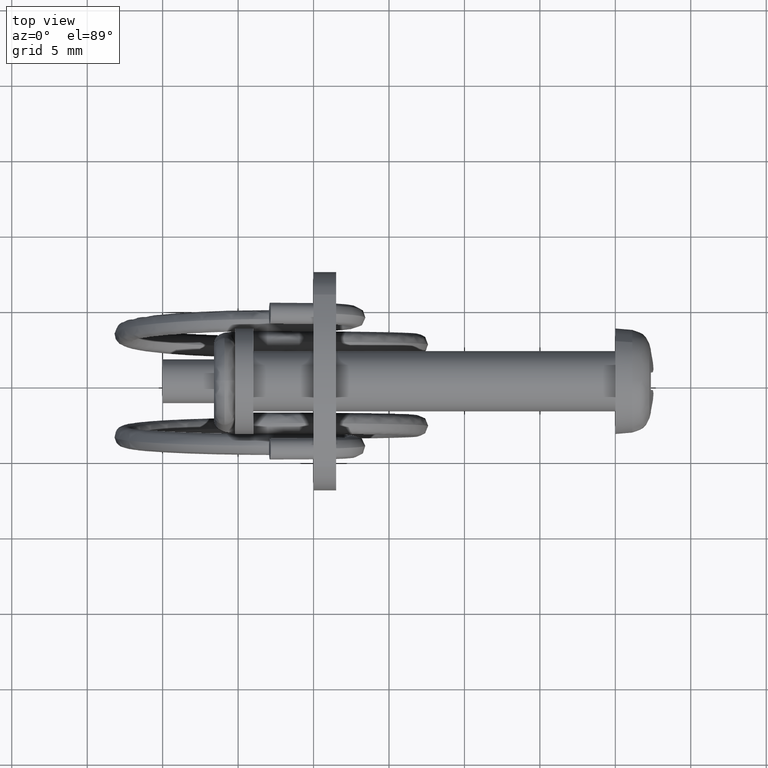
[diagram: clean part render]
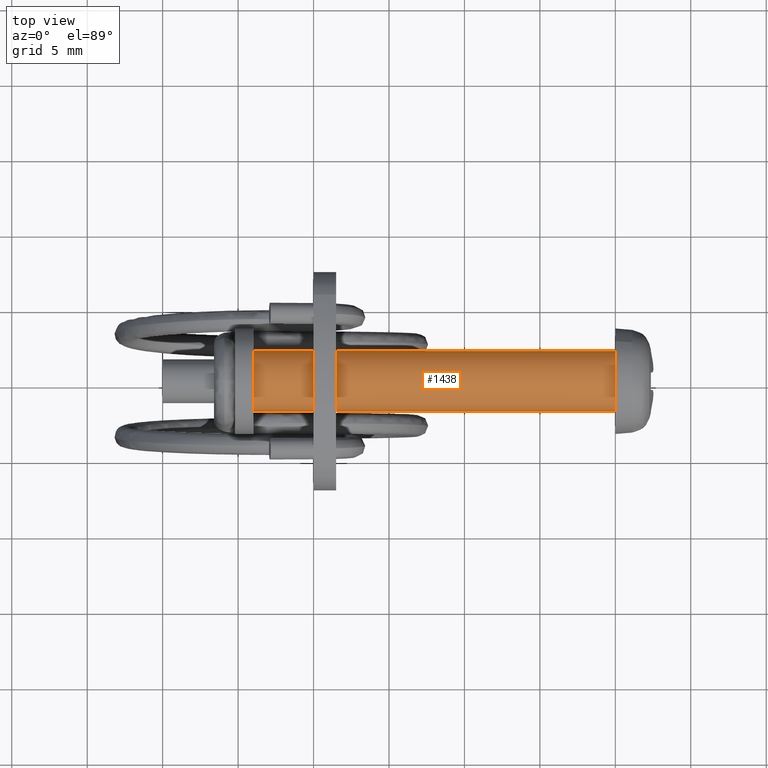
[diagram: same view with one face highlighted and labeled with its STEP entity id]
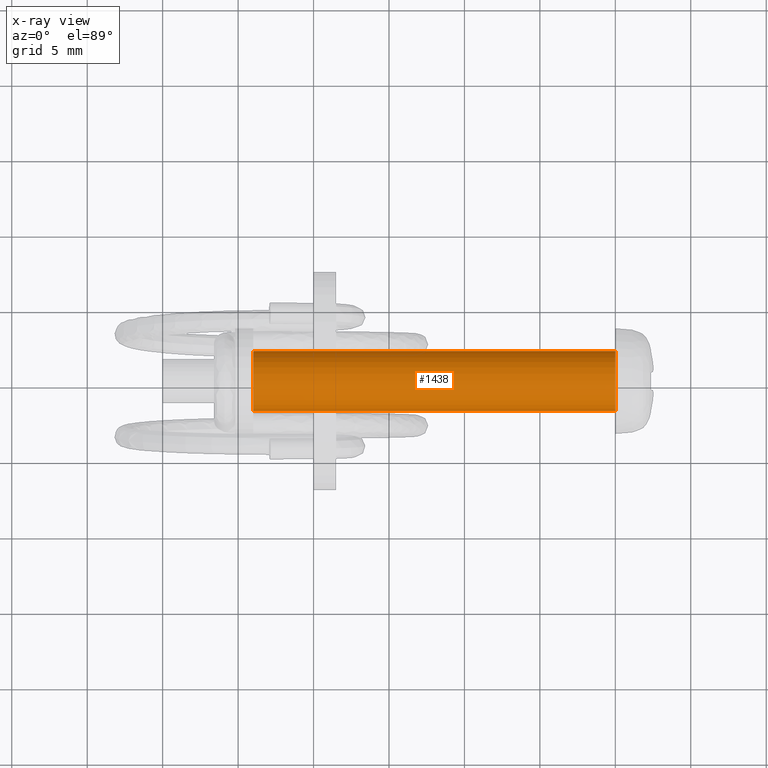
[diagram: x-ray of the same camera — body ghosted, the highlighted face saturated]
A machine part, top view. The second image highlights one B-rep face of the part: STEP entity #1438.
The next image is the same camera in x-ray: the body ghosted, the highlighted face saturated — about 0% of this face is hidden behind the body in this view.
In plain terms, the highlighted face is a freeform B-spline surface patch.
Its self-contained STEP definition (entity closure, byte-faithful):
#1252=CARTESIAN_POINT('',(-23.999999999999741,-1.996269809619732,-0.122093600111702));
#1253=VERTEX_POINT('',#1252);
#1267=CARTESIAN_POINT('',(-23.999999999999751,0.0,1.999999999999957));
#1268=VERTEX_POINT('',#1267);
#1269=CARTESIAN_POINT('',(-23.999999999999744,-1.996269809619732,-0.122093600111702));
#1270=CARTESIAN_POINT('',(-23.999999999999748,-1.999999999996912,-0.061103782240863));
#1271=CARTESIAN_POINT('',(-23.999999999999751,-1.999999999996958,2.365790E-013));
#1272=CARTESIAN_POINT('',(-23.999999999999755,-1.999999999998474,2.000000000000044));
#1273=CARTESIAN_POINT('',(-23.999999999999751,0.0,1.999999999999957));
#1281=(BOUNDED_CURVE()B_SPLINE_CURVE(2,(#1269,#1270,#1271,#1272,#1273),.UNSPECIFIED.,.F.,.U.)B_SPLINE_CURVE_WITH_KNOTS((3,2,3),(0.739333262944419,0.750000000000000,1.0),.UNSPECIFIED.)CURVE()GEOMETRIC_REPRESENTATION_ITEM()RATIONAL_B_SPLINE_CURVE((0.976072686136642,0.987503140198217,1.0,0.707106781186548,1.0))REPRESENTATION_ITEM(''));
#1282=EDGE_CURVE('',#1253,#1268,#1281,.T.);
#1284=CARTESIAN_POINT('',(-23.999999999999741,1.996269809619732,0.122093600111816));
#1285=VERTEX_POINT('',#1284);
#1286=CARTESIAN_POINT('',(-23.999999999999751,0.0,1.999999999999957));
#1287=CARTESIAN_POINT('',(-23.999999999999755,1.881415418731616,1.999999999999865));
#1288=CARTESIAN_POINT('',(-23.999999999999741,1.996269809619732,0.122093600111816));
#1296=(BOUNDED_CURVE()B_SPLINE_CURVE(2,(#1286,#1287,#1288),.UNSPECIFIED.,.F.,.U.)B_SPLINE_CURVE_WITH_KNOTS((3,3),(0.0,0.239333262944419),.UNSPECIFIED.)CURVE()GEOMETRIC_REPRESENTATION_ITEM()RATIONAL_B_SPLINE_CURVE((1.0,0.719603640988331,0.976072686136642))REPRESENTATION_ITEM(''));
#1297=EDGE_CURVE('',#1268,#1285,#1296,.T.);
#1336=CARTESIAN_POINT('',(-5.551115E-016,1.996269807000652,0.122093642935831));
#1337=VERTEX_POINT('',#1336);
#1338=CARTESIAN_POINT('',(-5.551115E-016,1.996269807000652,0.122093642935831));
#1339=CARTESIAN_POINT('',(-23.999999999999741,1.996269809619732,0.122093600111816));
#1340=QUASI_UNIFORM_CURVE('',1,(#1338,#1339),.UNSPECIFIED.,.F.,.U.);
#1341=EDGE_CURVE('',#1337,#1285,#1340,.T.);
#1360=CARTESIAN_POINT('',(-5.551115E-016,-1.996269807000652,-0.122093642935717));
#1361=VERTEX_POINT('',#1360);
#1375=CARTESIAN_POINT('',(-5.551115E-016,-1.996269807000652,-0.122093642935717));
#1376=CARTESIAN_POINT('',(-23.999999999999741,-1.996269809619732,-0.122093600111702));
#1377=QUASI_UNIFORM_CURVE('',1,(#1375,#1376),.UNSPECIFIED.,.F.,.U.);
#1378=EDGE_CURVE('',#1361,#1253,#1377,.T.);
#1384=CARTESIAN_POINT('',(0.599999999999994,-1.996269596843634,-0.122097079069651));
#1385=CARTESIAN_POINT('',(0.599999999999994,-2.118366675913341,1.874172517773982));
#1386=CARTESIAN_POINT('',(0.599999999999994,-0.122097079069708,1.996269596843690));
#1387=CARTESIAN_POINT('',(0.599999999999994,1.874172517773925,2.118366675913398));
#1388=CARTESIAN_POINT('',(0.599999999999994,1.996269596843634,0.122097079069765));
#1389=CARTESIAN_POINT('',(-24.614999999999750,-1.996269596843634,-0.122097079069651));
#1390=CARTESIAN_POINT('',(-24.614999999999746,-2.118366675913341,1.874172517773982));
#1391=CARTESIAN_POINT('',(-24.614999999999750,-0.122097079069708,1.996269596843690));
#1392=CARTESIAN_POINT('',(-24.614999999999746,1.874172517773925,2.118366675913398));
#1393=CARTESIAN_POINT('',(-24.614999999999750,1.996269596843634,0.122097079069765));
#1401=(BOUNDED_SURFACE()B_SPLINE_SURFACE(2,1,((#1384,#1389),(#1385,#1390),(#1386,#1391),(#1387,#1392),(#1388,#1393)),.UNSPECIFIED.,.F.,.F.,.U.)B_SPLINE_SURFACE_WITH_KNOTS((3,2,3),(2,2),(0.0,3.313708498984594,6.627416997969188),(0.0,25.214999999999751),.UNSPECIFIED.)GEOMETRIC_REPRESENTATION_ITEM()RATIONAL_B_SPLINE_SURFACE(((1.0,1.0),(0.707106781186548,0.707106781186548),(1.0,1.0),(0.707106781186548,0.707106781186548),(1.0,1.0)))REPRESENTATION_ITEM('')SURFACE());
#1402=ORIENTED_EDGE('',*,*,#1297,.F.);
#1403=ORIENTED_EDGE('',*,*,#1282,.F.);
#1404=ORIENTED_EDGE('',*,*,#1378,.F.);
#1405=CARTESIAN_POINT('',(0.0,0.0,1.999999999999957));
#1406=VERTEX_POINT('',#1405);
#1407=CARTESIAN_POINT('',(-5.551115E-016,-1.996269807000652,-0.122093642935717));
#1408=CARTESIAN_POINT('',(-5.471344E-016,-1.999999999996985,-0.061103803712907));
#1409=CARTESIAN_POINT('',(-5.386546E-016,-1.999999999997030,2.327141E-013));
#1410=CARTESIAN_POINT('',(-2.610988E-016,-1.999999999998509,2.000000000000042));
#1411=CARTESIAN_POINT('',(0.0,0.0,1.999999999999957));
#1419=(BOUNDED_CURVE()B_SPLINE_CURVE(2,(#1407,#1408,#1409,#1410,#1411),.UNSPECIFIED.,.F.,.U.)B_SPLINE_CURVE_WITH_KNOTS((3,2,3),(0.739333259242940,0.750000000000000,1.0),.UNSPECIFIED.)CURVE()GEOMETRIC_REPRESENTATION_ITEM()RATIONAL_B_SPLINE_CURVE((0.976072678203648,0.987503135861665,1.0,0.707106781186548,1.0))REPRESENTATION_ITEM(''));
#1420=EDGE_CURVE('',#1361,#1406,#1419,.T.);
#1421=ORIENTED_EDGE('',*,*,#1420,.T.);
#1422=CARTESIAN_POINT('',(0.0,0.0,1.999999999999957));
#1423=CARTESIAN_POINT('',(-2.775558E-016,1.881415378296086,1.999999999999867));
#1424=CARTESIAN_POINT('',(-5.551115E-016,1.996269807000652,0.122093642935831));
#1432=(BOUNDED_CURVE()B_SPLINE_CURVE(2,(#1422,#1423,#1424),.UNSPECIFIED.,.F.,.U.)B_SPLINE_CURVE_WITH_KNOTS((3,3),(0.0,0.239333259242940),.UNSPECIFIED.)CURVE()GEOMETRIC_REPRESENTATION_ITEM()RATIONAL_B_SPLINE_CURVE((1.0,0.719603645324883,0.976072678203648))REPRESENTATION_ITEM(''));
#1433=EDGE_CURVE('',#1406,#1337,#1432,.T.);
#1434=ORIENTED_EDGE('',*,*,#1433,.T.);
#1435=ORIENTED_EDGE('',*,*,#1341,.T.);
#1436=EDGE_LOOP('',(#1402,#1403,#1404,#1421,#1434,#1435));
#1437=FACE_OUTER_BOUND('',#1436,.T.);
#1438=ADVANCED_FACE('',(#1437),#1401,.T.);